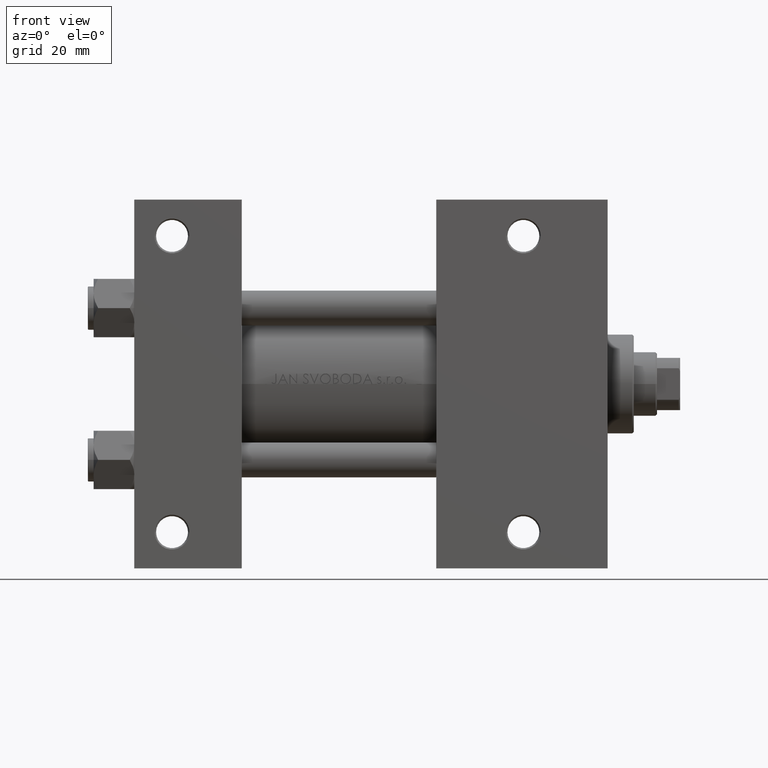
[diagram: clean part render]
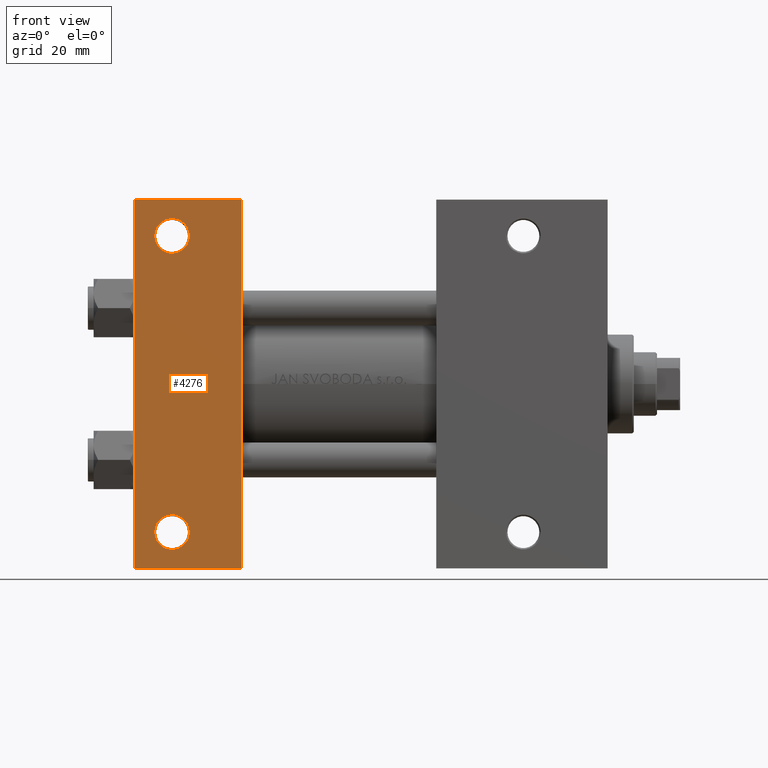
[diagram: same view with one face highlighted and labeled with its STEP entity id]
A machine part, front view. The second image highlights one B-rep face of the part: STEP entity #4276.
In plain terms, the highlighted planar face has unit normal (0, -1, -0).
Its self-contained STEP definition (entity closure, byte-faithful):
#466 = VERTEX_POINT ( 'NONE', #10988 ) ;
#1184 = LINE ( 'NONE', #5914, #31613 ) ;
#1355 = EDGE_CURVE ( 'NONE', #14977, #17982, #45106, .T. ) ;
#1568 = LINE ( 'NONE', #13276, #24893 ) ;
#1862 = PLANE ( 'NONE',  #48052 ) ;
#3069 = CARTESIAN_POINT ( 'NONE',  ( 1.595073532467135441E-14, 63.50000000000000000, -37.50000000000002132 ) ) ;
#3940 = ORIENTED_EDGE ( 'NONE', *, *, #32450, .T. ) ;
#4276 = ADVANCED_FACE ( 'NONE', ( #48179, #43950, #9832 ), #1862, .T. ) ;
#5914 = CARTESIAN_POINT ( 'NONE',  ( 0.000000000000000000, 37.49999999999999289, -37.50000000000000000 ) ) ;
#6100 = DIRECTION ( 'NONE',  ( 0.000000000000000000, 1.000000000000000000, 9.251858538542972814E-17 ) ) ;
#6350 = CARTESIAN_POINT ( 'NONE',  ( 3.977209754999747208E-16, -63.50000000000000000, -37.49999999999999289 ) ) ;
#6550 = CIRCLE ( 'NONE', #38372, 5.999499999999962974 ) ;
#8091 = DIRECTION ( 'NONE',  ( 0.000000000000000000, 1.000000000000000000, 0.000000000000000000 ) ) ;
#8340 = CARTESIAN_POINT ( 'NONE',  ( 3.977209754999747208E-16, -63.50000000000000000, -37.49999999999999289 ) ) ;
#9342 = CARTESIAN_POINT ( 'NONE',  ( 37.00000000000000000, 37.49999999999999289, -37.50000000000000000 ) ) ;
#9832 = FACE_OUTER_BOUND ( 'NONE', #41657, .T. ) ;
#9929 = CARTESIAN_POINT ( 'NONE',  ( 12.99999999999999822, -51.00000000000000711, -37.50000000000000711 ) ) ;
#10018 = ORIENTED_EDGE ( 'NONE', *, *, #36392, .T. ) ;
#10988 = CARTESIAN_POINT ( 'NONE',  ( 7.000500000000034362, 50.99999999999997868, -37.50000000000000000 ) ) ;
#11258 = ORIENTED_EDGE ( 'NONE', *, *, #33665, .T. ) ;
#11521 = CIRCLE ( 'NONE', #39357, 5.999499999999962974 ) ;
#12328 = CARTESIAN_POINT ( 'NONE',  ( 18.99949999999996209, 50.99999999999997868, -37.50000000000000000 ) ) ;
#13276 = CARTESIAN_POINT ( 'NONE',  ( 1.595073532467135441E-14, 63.50000000000000000, -37.50000000000002132 ) ) ;
#13315 = EDGE_LOOP ( 'NONE', ( #16494, #3940 ) ) ;
#14445 = EDGE_CURVE ( 'NONE', #17982, #41683, #28925, .T. ) ;
#14674 = ORIENTED_EDGE ( 'NONE', *, *, #45081, .T. ) ;
#14977 = VERTEX_POINT ( 'NONE', #18635 ) ;
#15858 = EDGE_CURVE ( 'NONE', #39855, #41683, #1184, .T. ) ;
#16163 = ORIENTED_EDGE ( 'NONE', *, *, #1355, .T. ) ;
#16494 = ORIENTED_EDGE ( 'NONE', *, *, #38355, .T. ) ;
#17982 = VERTEX_POINT ( 'NONE', #27014 ) ;
#18172 = ORIENTED_EDGE ( 'NONE', *, *, #14445, .T. ) ;
#18571 = VERTEX_POINT ( 'NONE', #30838 ) ;
#18628 = CIRCLE ( 'NONE', #36132, 5.999499999999962974 ) ;
#18635 = CARTESIAN_POINT ( 'NONE',  ( 37.00000000000001421, 63.50000000000000000, -37.50000000000002132 ) ) ;
#20167 = DIRECTION ( 'NONE',  ( -0.000000000000000000, -9.251858538542972814E-17, 1.000000000000000000 ) ) ;
#21106 = DIRECTION ( 'NONE',  ( 0.000000000000000000, -1.000000000000000000, -9.251858538542972814E-17 ) ) ;
#21608 = VERTEX_POINT ( 'NONE', #33388 ) ;
#23681 = VECTOR ( 'NONE', #38480, 1000.000000000000000 ) ;
#23739 = ORIENTED_EDGE ( 'NONE', *, *, #15858, .F. ) ;
#24229 = DIRECTION ( 'NONE',  ( 1.000000000000000000, 0.000000000000000000, 0.000000000000000000 ) ) ;
#24893 = VECTOR ( 'NONE', #24229, 1000.000000000000000 ) ;
#25017 = DIRECTION ( 'NONE',  ( 0.000000000000000000, 9.251858538542972814E-17, -1.000000000000000000 ) ) ;
#26277 = CARTESIAN_POINT ( 'NONE',  ( 12.99999999999999822, 50.99999999999997868, -37.50000000000000000 ) ) ;
#27014 = CARTESIAN_POINT ( 'NONE',  ( 37.00000000000000000, -63.50000000000000000, -37.49999999999999289 ) ) ;
#27396 = CARTESIAN_POINT ( 'NONE',  ( 37.00000000000000000, 37.49999999999999289, -37.50000000000000000 ) ) ;
#28925 = LINE ( 'NONE', #8340, #23681 ) ;
#30838 = CARTESIAN_POINT ( 'NONE',  ( 18.99949999999996209, -51.00000000000000711, -37.50000000000000711 ) ) ;
#30930 = DIRECTION ( 'NONE',  ( -0.000000000000000000, -9.251858538542972814E-17, 1.000000000000000000 ) ) ;
#31388 = CARTESIAN_POINT ( 'NONE',  ( 12.99999999999999822, -51.00000000000000711, -37.50000000000000711 ) ) ;
#31613 = VECTOR ( 'NONE', #21106, 1000.000000000000000 ) ;
#32375 = DIRECTION ( 'NONE',  ( 0.000000000000000000, 1.000000000000000000, 0.000000000000000000 ) ) ;
#32450 = EDGE_CURVE ( 'NONE', #49171, #466, #6550, .T. ) ;
#33388 = CARTESIAN_POINT ( 'NONE',  ( 7.000500000000034362, -51.00000000000000711, -37.50000000000000711 ) ) ;
#33665 = EDGE_CURVE ( 'NONE', #39855, #14977, #1568, .T. ) ;
#36132 = AXIS2_PLACEMENT_3D ( 'NONE', #9929, #43798, #39816 ) ;
#36392 = EDGE_CURVE ( 'NONE', #21608, #18571, #18628, .T. ) ;
#38355 = EDGE_CURVE ( 'NONE', #466, #49171, #11521, .T. ) ;
#38372 = AXIS2_PLACEMENT_3D ( 'NONE', #39376, #30930, #42619 ) ;
#38480 = DIRECTION ( 'NONE',  ( -1.000000000000000000, -0.000000000000000000, -0.000000000000000000 ) ) ;
#39357 = AXIS2_PLACEMENT_3D ( 'NONE', #26277, #41467, #8091 ) ;
#39376 = CARTESIAN_POINT ( 'NONE',  ( 12.99999999999999822, 50.99999999999997868, -37.50000000000000000 ) ) ;
#39816 = DIRECTION ( 'NONE',  ( 0.000000000000000000, 1.000000000000000000, 0.000000000000000000 ) ) ;
#39855 = VERTEX_POINT ( 'NONE', #3069 ) ;
#41467 = DIRECTION ( 'NONE',  ( -0.000000000000000000, -9.251858538542972814E-17, 1.000000000000000000 ) ) ;
#41657 = EDGE_LOOP ( 'NONE', ( #23739, #11258, #16163, #18172 ) ) ;
#41683 = VERTEX_POINT ( 'NONE', #6350 ) ;
#42619 = DIRECTION ( 'NONE',  ( 0.000000000000000000, 1.000000000000000000, 0.000000000000000000 ) ) ;
#43798 = DIRECTION ( 'NONE',  ( -0.000000000000000000, -9.251858538542972814E-17, 1.000000000000000000 ) ) ;
#43950 = FACE_BOUND ( 'NONE', #46166, .T. ) ;
#45081 = EDGE_CURVE ( 'NONE', #18571, #21608, #45841, .T. ) ;
#45106 = LINE ( 'NONE', #27396, #48858 ) ;
#45841 = CIRCLE ( 'NONE', #46642, 5.999499999999962974 ) ;
#45860 = DIRECTION ( 'NONE',  ( 0.000000000000000000, -1.000000000000000000, -9.251858538542972814E-17 ) ) ;
#46166 = EDGE_LOOP ( 'NONE', ( #10018, #14674 ) ) ;
#46642 = AXIS2_PLACEMENT_3D ( 'NONE', #31388, #20167, #32375 ) ;
#48052 = AXIS2_PLACEMENT_3D ( 'NONE', #9342, #25017, #6100 ) ;
#48179 = FACE_BOUND ( 'NONE', #13315, .T. ) ;
#48858 = VECTOR ( 'NONE', #45860, 1000.000000000000000 ) ;
#49171 = VERTEX_POINT ( 'NONE', #12328 ) ;